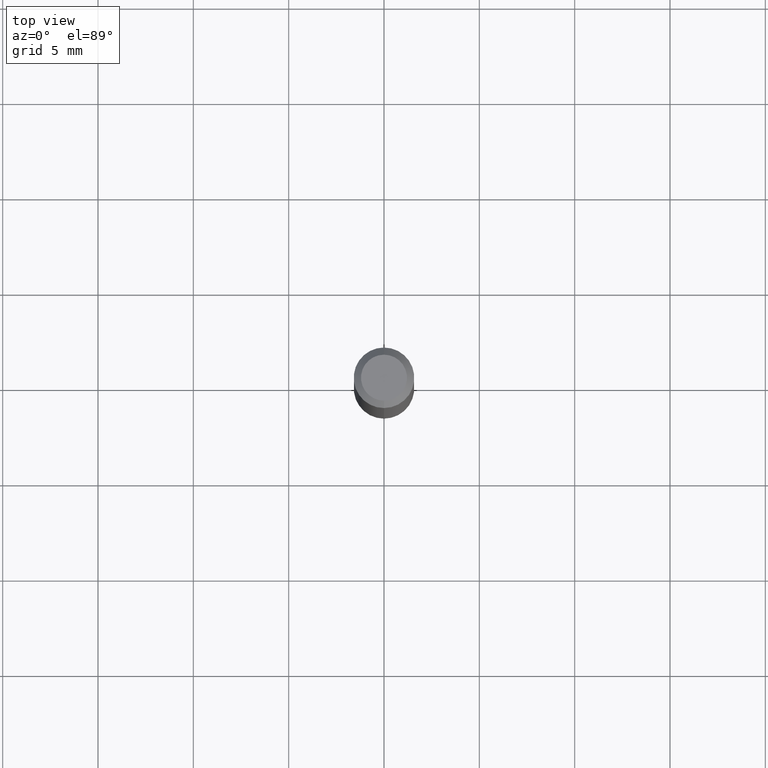
[diagram: clean part render]
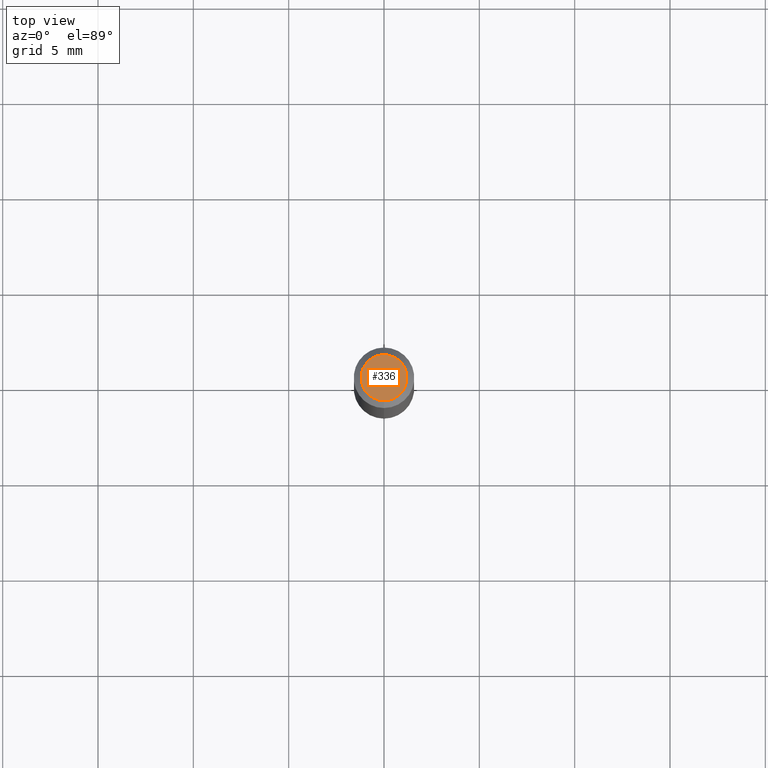
[diagram: same view with one face highlighted and labeled with its STEP entity id]
A machine part, top view. The second image highlights one B-rep face of the part: STEP entity #336.
In plain terms, the highlighted planar face has unit normal (0, -0, -1).
Its self-contained STEP definition (entity closure, byte-faithful):
#9 = CARTESIAN_POINT ( 'NONE',  ( 3.840629472727447874E-16, 0.04749999999999999362, -1.747056831868805136E-16 ) ) ;
#130 = ORIENTED_EDGE ( 'NONE', *, *, #324, .T. ) ;
#150 = CARTESIAN_POINT ( 'NONE',  ( 2.166904642905017015E-46, -3.093745129968265036E-32, -8.860867495996763606E-18 ) ) ;
#154 = FACE_OUTER_BOUND ( 'NONE', #388, .T. ) ;
#178 = CIRCLE ( 'NONE', #297, 0.04749999999999999362 ) ;
#187 = DIRECTION ( 'NONE',  ( -2.445476860910062306E-29, 3.491469804018605313E-15, 1.000000000000000000 ) ) ;
#194 = PLANE ( 'NONE',  #400 ) ;
#226 = DIRECTION ( 'NONE',  ( 6.982962677686265922E-15, 1.000000000000000000, -3.491469804018605313E-15 ) ) ;
#263 = EDGE_CURVE ( 'NONE', #379, #512, #178, .T. ) ;
#297 = AXIS2_PLACEMENT_3D ( 'NONE', #150, #471, #386 ) ;
#312 = CARTESIAN_POINT ( 'NONE',  ( 3.316907271900976096E-16, 0.04749999999999999362, -1.702752494388820995E-16 ) ) ;
#324 = EDGE_CURVE ( 'NONE', #512, #379, #502, .T. ) ;
#336 = ADVANCED_FACE ( 'NONE', ( #154 ), #194, .F. ) ;
#372 = CARTESIAN_POINT ( 'NONE',  ( -3.773273898774340269E-16, -0.04749999999999999362, 1.569839481948869803E-16 ) ) ;
#379 = VERTEX_POINT ( 'NONE', #372 ) ;
#386 = DIRECTION ( 'NONE',  ( -6.982962677686266711E-15, -1.000000000000000000, 3.491469804018606102E-15 ) ) ;
#388 = EDGE_LOOP ( 'NONE', ( #130, #393 ) ) ;
#389 = CARTESIAN_POINT ( 'NONE',  ( 2.166904642905017015E-46, -3.093745129968265036E-32, -8.860867495996763606E-18 ) ) ;
#392 = DIRECTION ( 'NONE',  ( -6.982962677686266711E-15, -1.000000000000000000, 3.491469804018606102E-15 ) ) ;
#393 = ORIENTED_EDGE ( 'NONE', *, *, #263, .T. ) ;
#400 = AXIS2_PLACEMENT_3D ( 'NONE', #312, #435, #226 ) ;
#435 = DIRECTION ( 'NONE',  ( 2.445476860910062026E-29, -3.491469804018605313E-15, -1.000000000000000000 ) ) ;
#471 = DIRECTION ( 'NONE',  ( -2.445476860910062306E-29, 3.491469804018605313E-15, 1.000000000000000000 ) ) ;
#502 = CIRCLE ( 'NONE', #511, 0.04749999999999999362 ) ;
#511 = AXIS2_PLACEMENT_3D ( 'NONE', #389, #187, #392 ) ;
#512 = VERTEX_POINT ( 'NONE', #9 ) ;